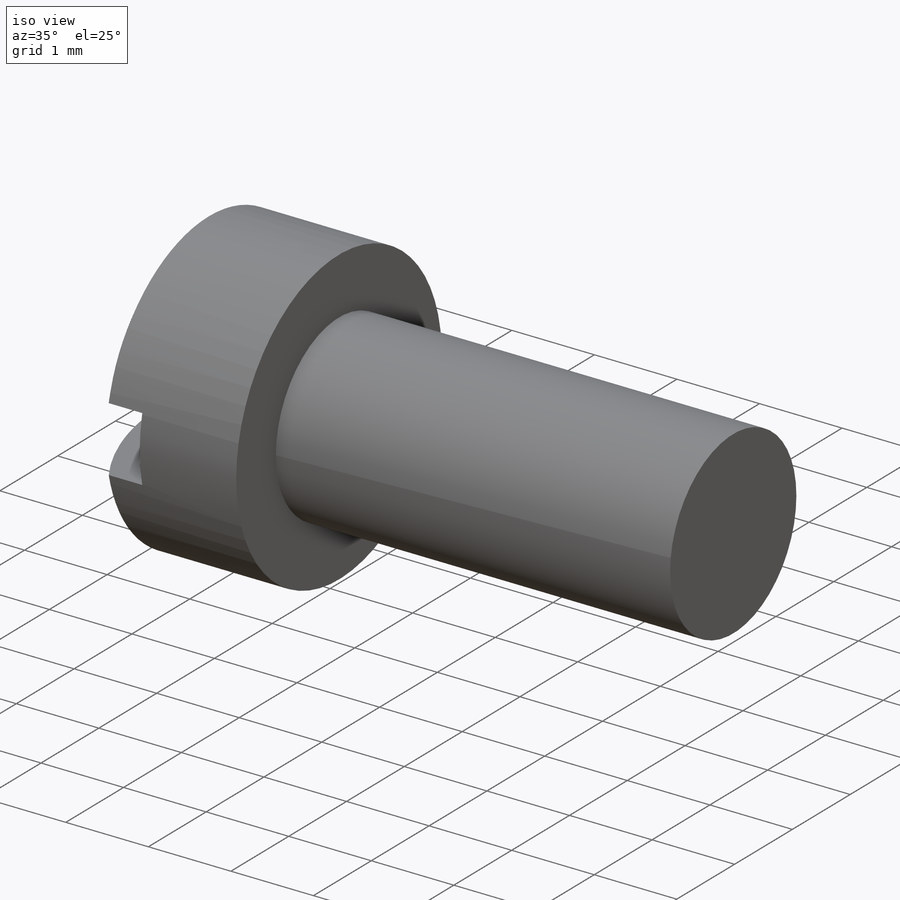
[diagram: iso view]
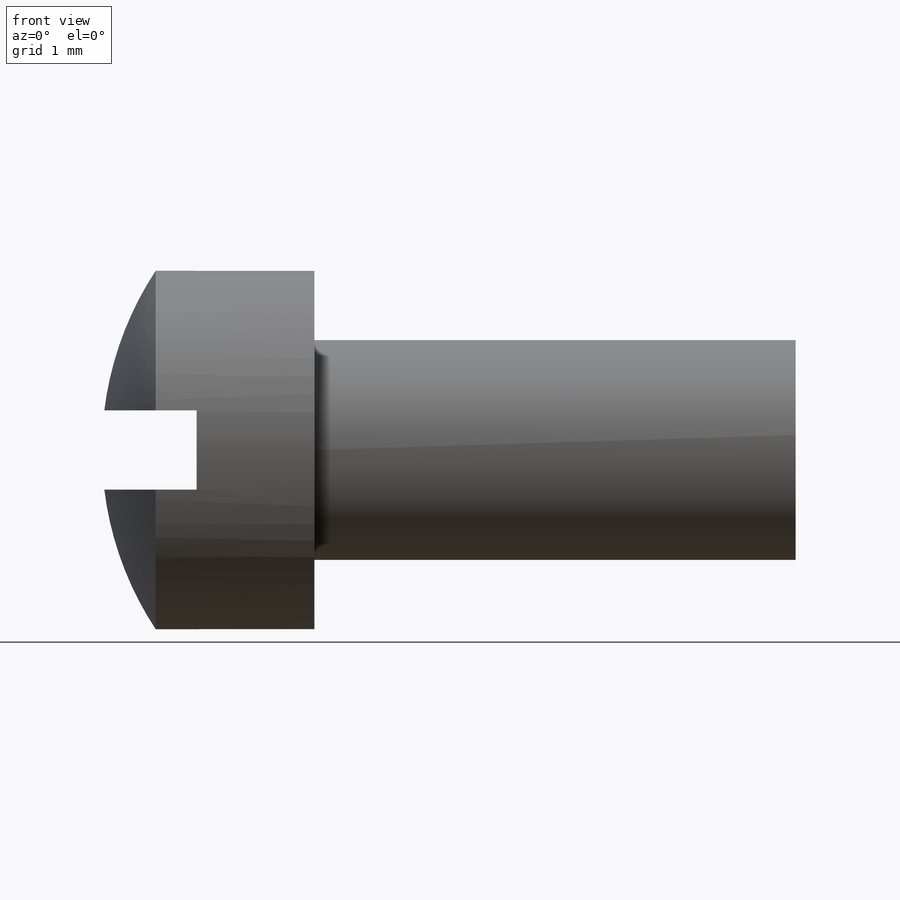
[diagram: front view]
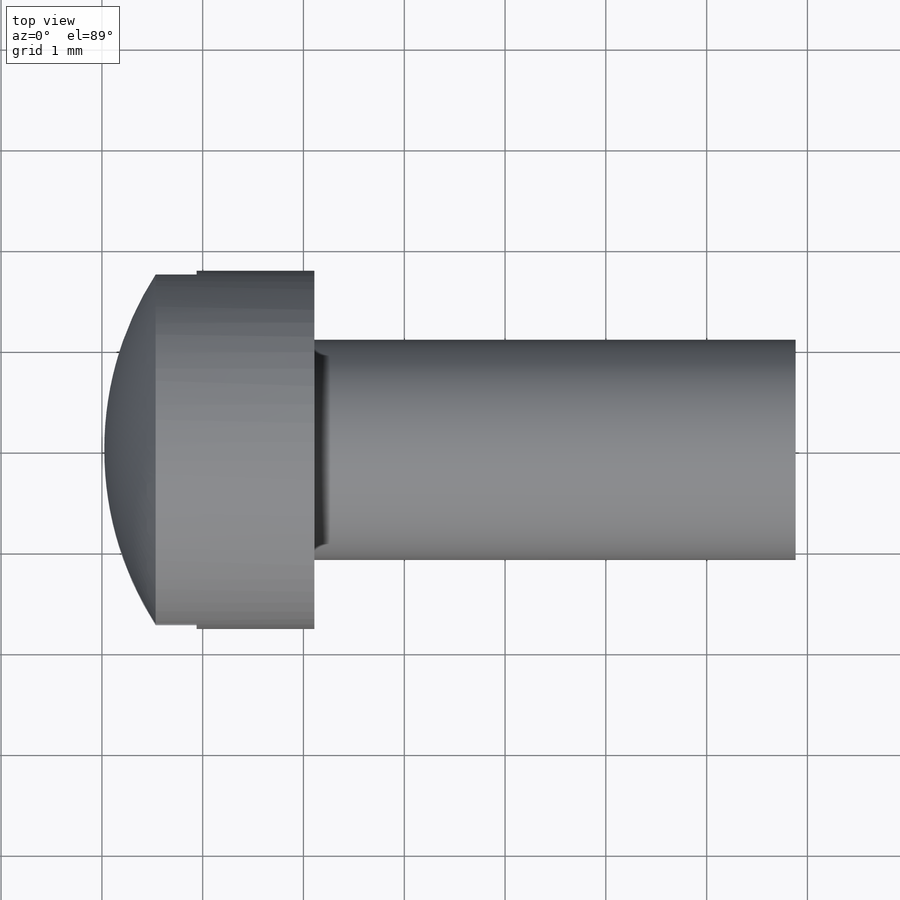
[diagram: top view]
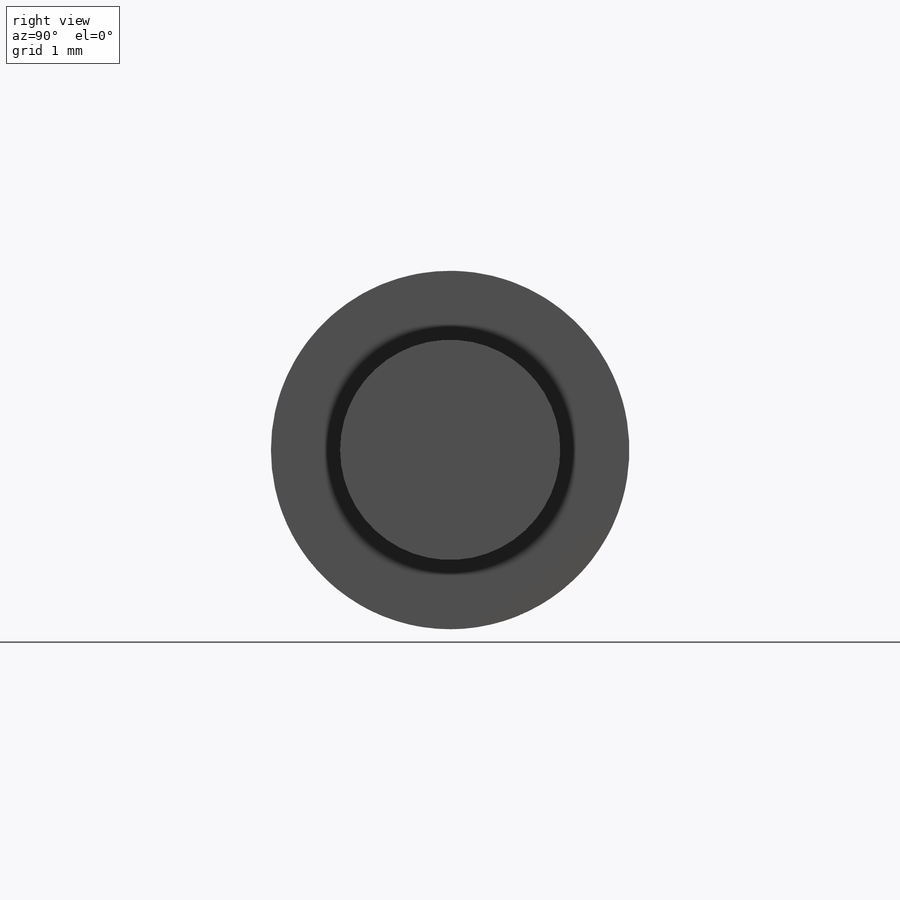
[diagram: right view]
SOLIDWORKS PART (.sldprt)
format: sldprt  version: not decoded by parser v0  size: 1,323,520 bytes
history: native  units: mm
features: sketch x6, plane x4, cut_revolve x4, material x1, revolve x1, thread x1, cut_extrude x1, pattern_circular x1, hole x1, pattern_linear x1 (+11 scaffold rows collapsed; 1 parser-record rows omitted)
feature tree (33):
  parser-record x1  (decoder bookkeeping rows leaked as tree rows — omitted from the tree; the rows remain in map.json)
  scaffold x11  (default folders/planes/origin — collapsed)
  material  "Material <not specified>"
  plane  "Plane1"
  plane  "Plane2"
  plane  "Plane3"
  sketch  "BodySke"  dims[c1.D1=~7.099516mm c1.Head_ang=85.0deg c1.Oval_ht=2.3876mm c1.Head_ht=6.1976mm c1.Diameter=2.1844mm c1.Length=76.2mm c1.Head_dia=20.0152mm c2.Head_dia=3.556mm c2.Head_ht=2.1082mm c2.Length=9.525mm c2.Head_side_ht=1.5748mm c2.Advance=2.54mm c2.Thread_nom=9.525mm c2.D3=13.0175mm c3.Advance=~0.45466mm c3.Thread_lim=14.1605mm]
  revolve  "Base-Revolve"  [1 undecoded]
  thread  "ThreadCosmetic"  Diameter=9.07034mm Thread_length=9.07034mm Thread_minor=1.64592mm  [1 undecoded]
  sketch  "Sketch2"  dims[D1=3.556mm D2=1.778mm D3=0.3937mm Slot_width=0.7874mm]
  cut_extrude  "Slot"  Depth=0.9398mm Slot_depth=0.9398mm
  sketch  "Sketch3"  dims[Cross_width=0.6096mm D1=0.3048mm Cross_dia=2.667mm D2=1.3335mm]
  plane  "Plane4"  Offset=1.4224mm Cross_depth=1.4224mm
  sketch  "Sketch4"  dims[D1=0.3048mm D2=0.1524mm D3=0.3048mm D4=0.1524mm]
  pattern_circular  "CirPattern1"  Count=2 Angle=90deg
  sketch  "Sketch5"  dims[D2=~2.989532mm Drilled_hole_dia=0.7874mm D1=2.1082mm Drilled_hole_loc=0.6604mm D4=~12.779478mm]
  hole  "Hole"  Diameter=1.413535mm
  sketch  "ThdSchSke"  dims[c1.Thread_minor=~1.03886mm c1.Diameter=~1.413535mm c1.Start=~0.988134mm c1.D4=~4.446753mm c1.Vee=60.0deg c2.Thread_minor=~1.03886mm c2.Start=~2.540025mm c2.D1=~0.108159mm c2.D2=~0.108159mm c3.D1=~0.216319mm c3.SideAngle=55.0deg c3.D2=~0.216319mm c3.VeeAngle=70.0deg c3.Thread_minor=~1.64592mm c3.Overcut=2.7305mm c3.Diameter=2.1844mm c3.D6=~8.326268mm c4.D1=~8.326268mm c5.D1=90.0deg c5.Start=11.1125mm c6.Start=~44.450025mm c7.Start=~0.977925mm c8.Start=~2.56286mm]
  cut_revolve  "ThreadSchematic"  Angle=360deg
  pattern_linear  "ThdSchPat"  Count1=21 Count2=1 Spacing1=0.453517mm Spacing2=50mm Num_threads=21 Advance=0.453517mm
  cut_revolve  "ConfigurationName"  CopiedFlag=0  [1 undecoded]
  cut_revolve  "PartNumberID"  [1 undecoded]
  cut_revolve  "ConfigurationName"  CopiedFlag=0  [1 undecoded]
decode coverage: 14 of 16 modeling features carry decoded parameters
note: ~ marks probable driven/reference dimensions
note: 5 parameter values undecoded
summary: no parameter record found for 4 features
note: suppression state not decoded; provenance and decode notes live in map.json
